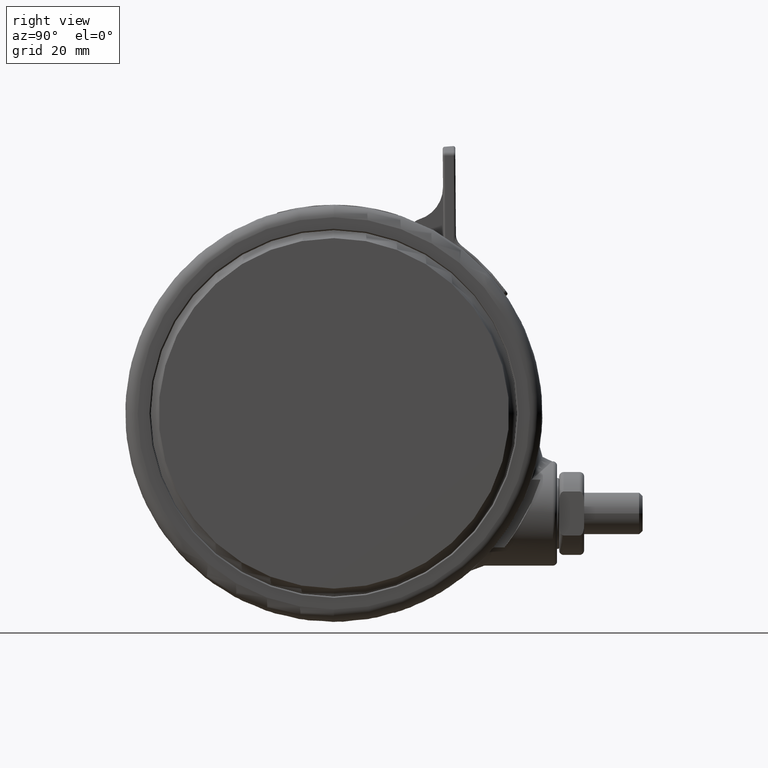
[diagram: clean part render]
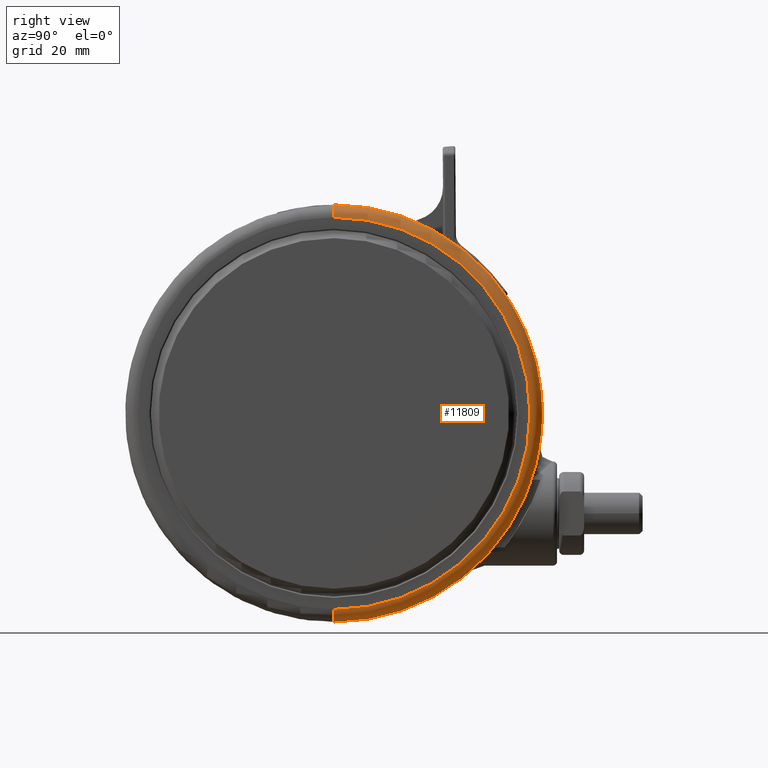
[diagram: same view with one face highlighted and labeled with its STEP entity id]
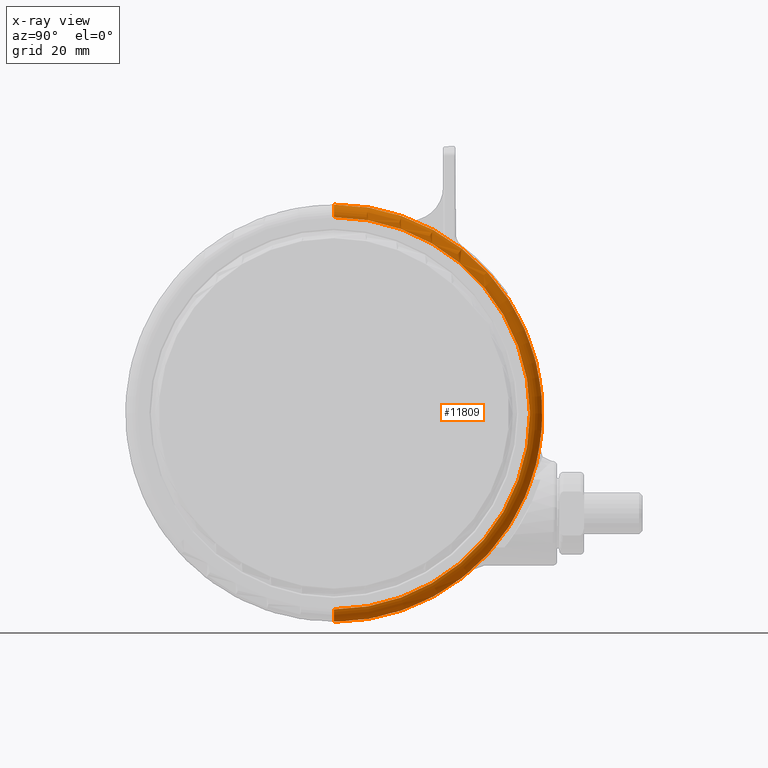
[diagram: x-ray of the same camera — body ghosted, the highlighted face saturated]
A machine part, right view. The second image highlights one B-rep face of the part: STEP entity #11809.
The next image is the same camera in x-ray: the body ghosted, the highlighted face saturated — about 0% of this face is hidden behind the body in this view.
In plain terms, the highlighted toroidal blend (fillet) surface has major radius 47 mm and minor (blend) radius 3 mm.
Its self-contained STEP definition (entity closure, byte-faithful):
#349 = CARTESIAN_POINT ( 'NONE',  ( 49.99999999999998600, 2.288095260928844600E-015, -5.099999999999829100 ) ) ;
#583 = AXIS2_PLACEMENT_3D ( 'NONE', #7666, #34076, #11455 ) ;
#1228 = CARTESIAN_POINT ( 'NONE',  ( -1.394157828206119900E-014, 1.333397076121845300E-015, -5.099999999999828200 ) ) ;
#2044 = AXIS2_PLACEMENT_3D ( 'NONE', #34879, #12259, #38720 ) ;
#2376 = DIRECTION ( 'NONE',  ( 2.126349141558171900E-017, 1.337754666183254700E-016, 1.000000000000000000 ) ) ;
#3988 = VERTEX_POINT ( 'NONE', #4940 ) ;
#4811 = DIRECTION ( 'NONE',  ( -2.126349141558171900E-017, -1.337754666183254700E-016, -1.000000000000000000 ) ) ;
#4940 = CARTESIAN_POINT ( 'NONE',  ( -47.00000000000001400, -1.172523862411199300E-014, -2.099999999999937900 ) ) ;
#5216 = FACE_OUTER_BOUND ( 'NONE', #21240, .T. ) ;
#7666 = CARTESIAN_POINT ( 'NONE',  ( 46.99999999999998600, 8.426774611007273000E-015, -5.099999999999829100 ) ) ;
#7955 = ORIENTED_EDGE ( 'NONE', *, *, #25909, .F. ) ;
#8684 = EDGE_CURVE ( 'NONE', #3988, #38034, #15418, .T. ) ;
#11455 = DIRECTION ( 'NONE',  ( -1.000000000000000000, -1.509229262741580100E-016, 0.0000000000000000000 ) ) ;
#11809 = ADVANCED_FACE ( 'NONE', ( #5216 ), #35354, .T. ) ;
#12259 = DIRECTION ( 'NONE',  ( 2.733876061888933300E-016, -1.000000000000000000, 1.337754666183254700E-016 ) ) ;
#12907 = ORIENTED_EDGE ( 'NONE', *, *, #38701, .T. ) ;
#13109 = ORIENTED_EDGE ( 'NONE', *, *, #8684, .F. ) ;
#15418 = CIRCLE ( 'NONE', #35148, 47.00000000000000000 ) ;
#18687 = CIRCLE ( 'NONE', #583, 3.000000000000002700 ) ;
#19093 = CARTESIAN_POINT ( 'NONE',  ( 46.99999999999998600, 8.828101010862234300E-015, -2.099999999999939700 ) ) ;
#21240 = EDGE_LOOP ( 'NONE', ( #13109, #12907, #33500, #7955 ) ) ;
#23813 = CIRCLE ( 'NONE', #2044, 3.000000000000002700 ) ;
#24530 = AXIS2_PLACEMENT_3D ( 'NONE', #1228, #27607, #39046 ) ;
#24983 = CARTESIAN_POINT ( 'NONE',  ( -1.387778780781445700E-014, 1.734723475976807100E-015, -2.099999999999938800 ) ) ;
#25909 = EDGE_CURVE ( 'NONE', #38034, #42275, #18687, .T. ) ;
#27402 = CARTESIAN_POINT ( 'NONE',  ( -1.394157828206119900E-014, 1.333397076121845300E-015, -5.099999999999828200 ) ) ;
#27540 = AXIS2_PLACEMENT_3D ( 'NONE', #27402, #4811, #31242 ) ;
#27607 = DIRECTION ( 'NONE',  ( -2.126349141558171900E-017, -1.337754666183254700E-016, -1.000000000000000000 ) ) ;
#28762 = DIRECTION ( 'NONE',  ( 1.000000000000000000, 1.509229262741580100E-016, -1.845450506358305400E-017 ) ) ;
#31242 = DIRECTION ( 'NONE',  ( 1.000000000000000000, 1.509229262741580400E-016, -1.734723475976807100E-017 ) ) ;
#33183 = VERTEX_POINT ( 'NONE', #43777 ) ;
#33500 = ORIENTED_EDGE ( 'NONE', *, *, #36100, .F. ) ;
#34076 = DIRECTION ( 'NONE',  ( -1.509229262741580100E-016, 1.000000000000000000, -1.337754666183254700E-016 ) ) ;
#34879 = CARTESIAN_POINT ( 'NONE',  ( -47.00000000000001400, -1.151582041475614100E-014, -5.099999999999827300 ) ) ;
#35148 = AXIS2_PLACEMENT_3D ( 'NONE', #24983, #2376, #28762 ) ;
#35354 = TOROIDAL_SURFACE ( 'NONE', #24530, 47.00000000000000000, 3.000000000000000000 ) ;
#36100 = EDGE_CURVE ( 'NONE', #42275, #33183, #41209, .T. ) ;
#38034 = VERTEX_POINT ( 'NONE', #19093 ) ;
#38701 = EDGE_CURVE ( 'NONE', #3988, #33183, #23813, .T. ) ;
#38720 = DIRECTION ( 'NONE',  ( 1.000000000000000000, 2.733876061888929400E-016, 0.0000000000000000000 ) ) ;
#39046 = DIRECTION ( 'NONE',  ( 1.000000000000000000, 1.509229262741580100E-016, -2.126349141558173700E-017 ) ) ;
#41209 = CIRCLE ( 'NONE', #27540, 50.00000000000000000 ) ;
#42275 = VERTEX_POINT ( 'NONE', #349 ) ;
#43777 = CARTESIAN_POINT ( 'NONE',  ( -50.00000000000001400, -6.680963370750189900E-015, -5.099999999999827300 ) ) ;